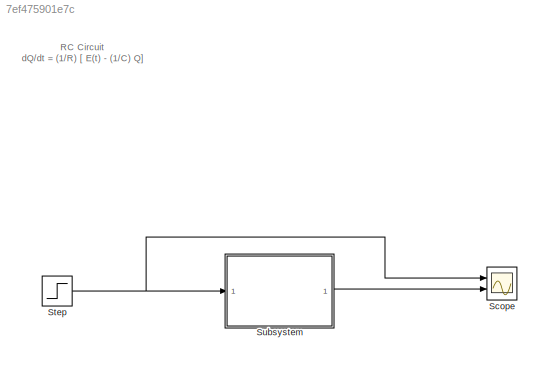
MODEL slx_7ef475901e7c
KIND model
CONFIG AbsTol = auto
CONFIG EnableMultiTasking = off
CONFIG FixedStep = auto
CONFIG MaxStep = 0.001
CONFIG MinStep = auto
CONFIG PostLoadFcn = R = 10;\nC = 10*10^(-6);
CONFIG RelTol = 1e-3
CONFIG SampleTimeConstraint = Unconstrained
CONFIG Solver = VariableStepAuto
CONFIG SolverName = VariableStepAuto
CONFIG StartTime = 0.0
CONFIG StopTime = 50
BLOCK [Scope] Scope
  Floating = off
  NumInputPorts = 2
  Ports = [2]
  ScopeSpecificationString = Simulink.scopes.TimeScopeBlockCfg('CurrentConfiguration', extmgr.ConfigurationSet(extmgr.Configuration('Core','General UI',true),extmgr.Configuration('Core','Source UI',true),extmgr.Configuration('Sources','WiredSimulink',true),extmgr.Configuration('Visuals','Time Domain',true,'SerializedDisplays',{struct('MinYLimReal','-0.0625','MaxYLimReal','0.5625','YLabelReal','','MinYLimMag','0.00000','MaxYLi...<+2012ch>
BLOCK [Step] Step
  After = 0.5
  SampleTime = 0
  Time = 10
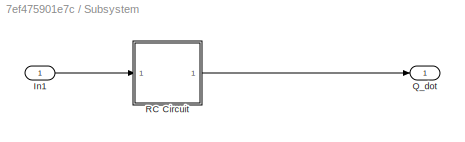
BLOCK [SubSystem] Subsystem
  Ports = [1, 1]
  RequestExecContextInheritance = off
  TreatAsAtomicUnit = on
BLOCK [Inport] Subsystem/In1
BLOCK [Outport] Subsystem/Q_dot
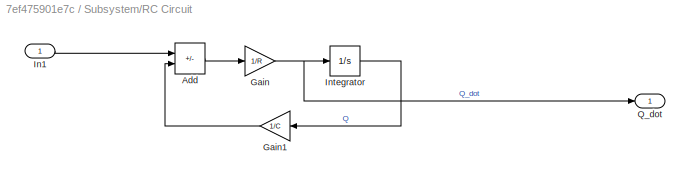
BLOCK [SubSystem] Subsystem/RC Circuit
  Ports = [1, 1]
  RequestExecContextInheritance = off
BLOCK [Sum] Subsystem/RC Circuit/Add
  IconShape = rectangular
  Inputs = +-
  Ports = [2, 1]
BLOCK [Gain] Subsystem/RC Circuit/Gain
  Gain = 1/R
BLOCK [Gain] Subsystem/RC Circuit/Gain1
  Gain = 1/C
BLOCK [Inport] Subsystem/RC Circuit/In1
BLOCK [Integrator] Subsystem/RC Circuit/Integrator
  Ports = [1, 1]
BLOCK [Outport] Subsystem/RC Circuit/Q_dot
ANNOTATION (root): RC Circuit dQ/dt = (1/R) [ E(t) - (1/C) Q]
NET Step:1 -> Scope:1, Subsystem:1
LINE Subsystem/In1:1 -> Subsystem/RC Circuit:1
LINE Subsystem/RC Circuit/Add:1 -> Subsystem/RC Circuit/Gain:1
LINE Subsystem/RC Circuit/Gain1:1 -> Subsystem/RC Circuit/Add:2
NET Subsystem/RC Circuit/Gain:1 -> Subsystem/RC Circuit/Integrator:1, Subsystem/RC Circuit/Q_dot:1
LINE Subsystem/RC Circuit/In1:1 -> Subsystem/RC Circuit/Add:1
LINE Subsystem/RC Circuit/Integrator:1 -> Subsystem/RC Circuit/Gain1:1
LINE Subsystem/RC Circuit:1 -> Subsystem/Q_dot:1
LINE Subsystem:1 -> Scope:2
note: NET lines group one-source signal fan-out (src -> all destinations, sorted); 1:1 wires keep LINE
